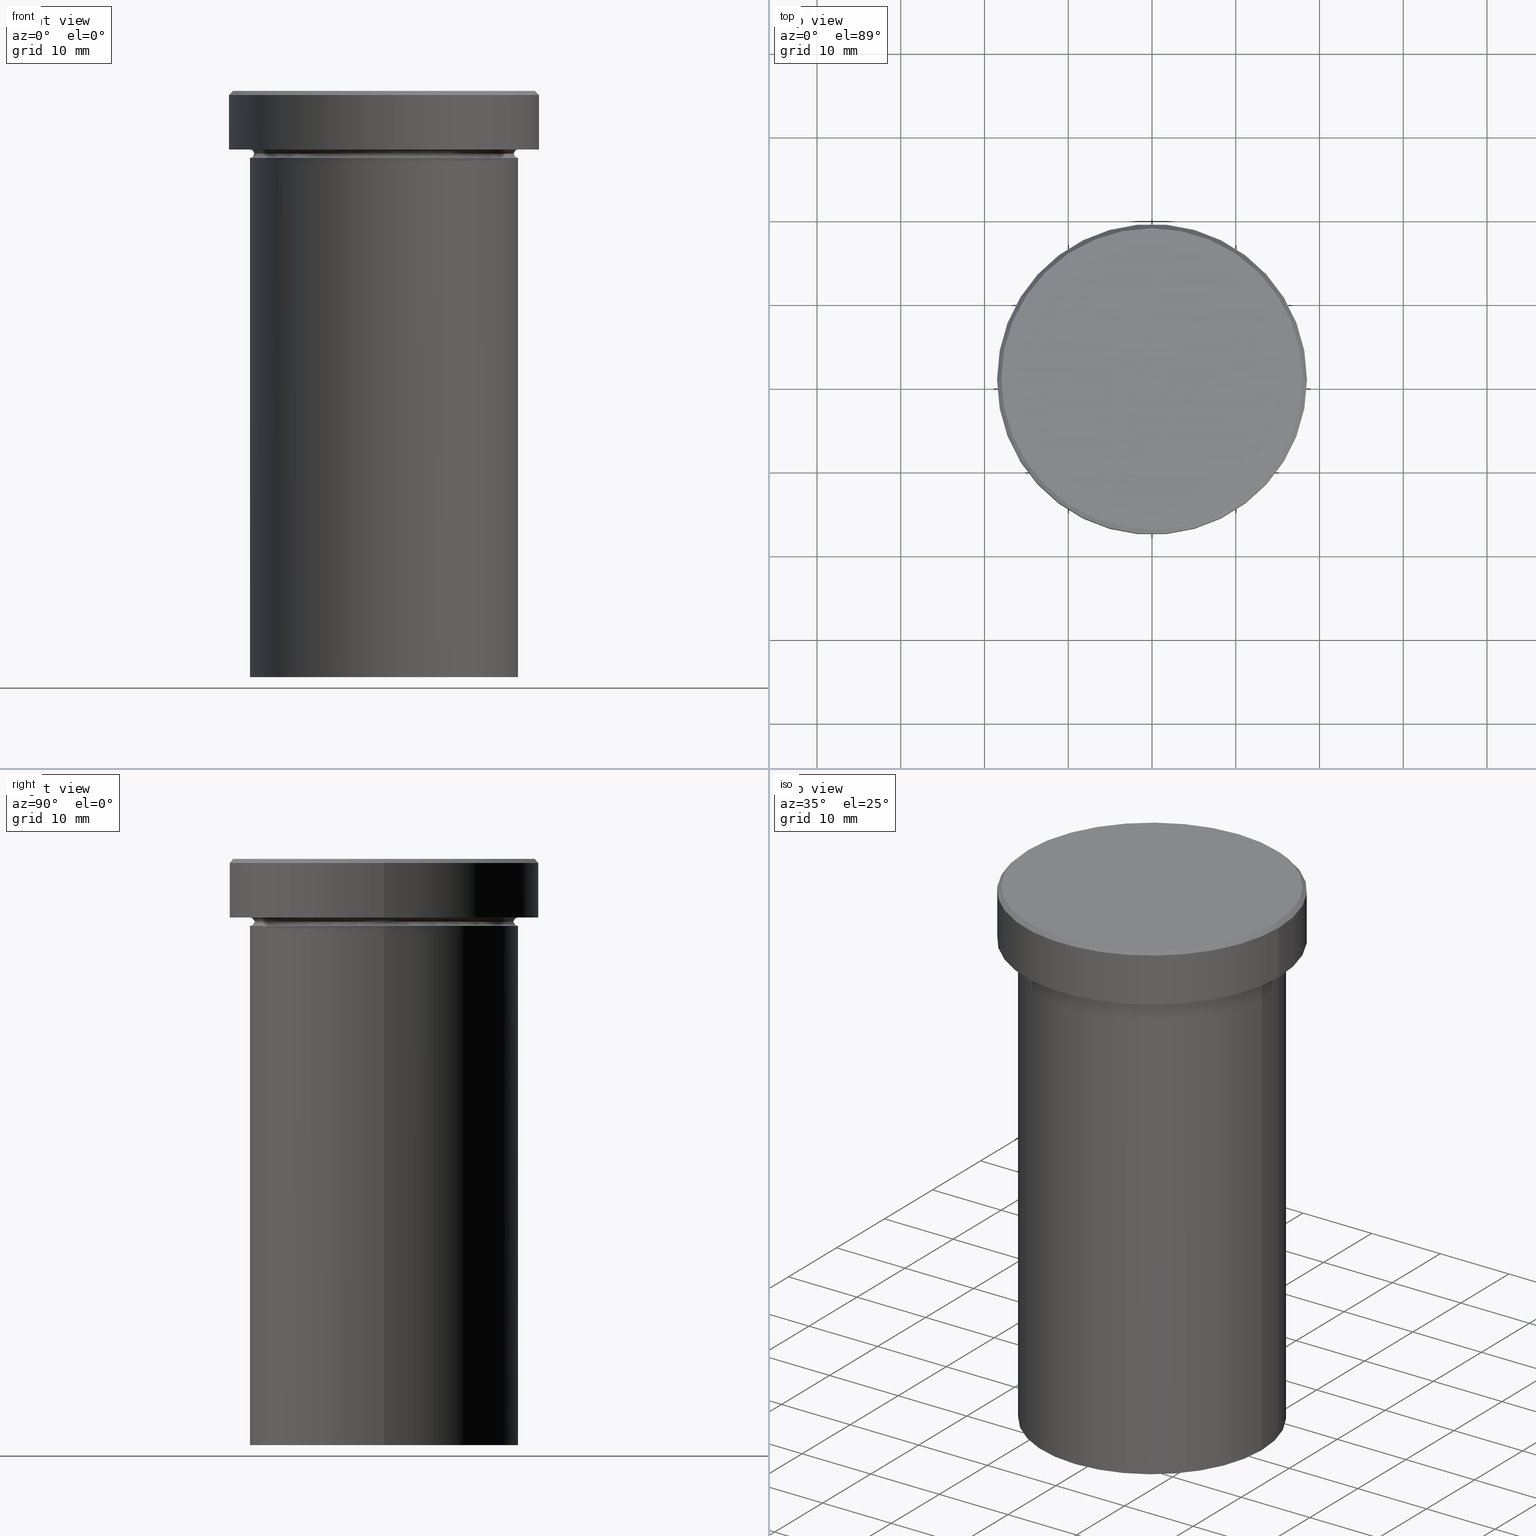
[diagram: canonical four-view strip — front | top / right | iso, engineering-drawing reading convention]
A machine part, canonical four-view strip (front | top / right | iso — engineering-drawing reading convention). The complete STEP part file that produces these views, byte-faithful:
ISO-10303-21;
HEADER;
FILE_DESCRIPTION (( 'STEP AP203' ),
    '1' );
FILE_NAME ('1b6e.STEP',
    '2024-01-02T18:53:18',
    ( '' ),
    ( '' ),
    'SwSTEP 2.0',
    'SolidWorks 2019',
    '' );
FILE_SCHEMA (( 'CONFIG_CONTROL_DESIGN' ));
ENDSEC;

DATA;
#1 = CARTESIAN_POINT ( 'NONE',  ( -16.00000000000000000, 1.959434878635765131E-15, 0.000000000000000000 ) ) ;
#2 = ORIENTED_EDGE ( 'NONE', *, *, #101, .T. ) ;
#3 = CALENDAR_DATE ( 2024, 2, 1 ) ;
#4 = DIRECTION ( 'NONE',  ( 1.000000000000000000, 0.000000000000000000, 0.000000000000000000 ) ) ;
#5 = ORIENTED_EDGE ( 'NONE', *, *, #390, .T. ) ;
#6 = PERSON_AND_ORGANIZATION ( #210, #77 ) ;
#7 = CC_DESIGN_APPROVAL ( #21, ( #374 ) ) ;
#8 = CYLINDRICAL_SURFACE ( 'NONE', #130, 16.00000000000000000 ) ;
#9 = CIRCLE ( 'NONE', #108, 18.00000000000001066 ) ;
#10 = SHAPE_DEFINITION_REPRESENTATION ( #187, #308 ) ;
#11 = CYLINDRICAL_SURFACE ( 'NONE', #353, 18.50000000000000000 ) ;
#12 = EDGE_CURVE ( 'NONE', #275, #209, #54, .T. ) ;
#13 = FACE_OUTER_BOUND ( 'NONE', #52, .T. ) ;
#14 = APPROVAL_STATUS ( 'not_yet_approved' ) ;
#15 = DIRECTION ( 'NONE',  ( 1.000000000000000000, 0.000000000000000000, 0.000000000000000000 ) ) ;
#16 = SECURITY_CLASSIFICATION ( '', '', #382 ) ;
#17 = CARTESIAN_POINT ( 'NONE',  ( 0.000000000000000000, 16.00000000000000000, -70.00000000000000000 ) ) ;
#18 = AXIS2_PLACEMENT_3D ( 'NONE', #359, #298, #265 ) ;
#19 = DIRECTION ( 'NONE',  ( -0.000000000000000000, -0.000000000000000000, 1.000000000000000000 ) ) ;
#20 = ORIENTED_EDGE ( 'NONE', *, *, #32, .F. ) ;
#21 = APPROVAL ( #14, 'NEUR�EN�' ) ;
#22 = DIRECTION ( 'NONE',  ( -1.000000000000000000, 0.000000000000000000, 0.000000000000000000 ) ) ;
#23 = CARTESIAN_POINT ( 'NONE',  ( 18.00000000000001066, 2.204364238465237006E-15, 0.000000000000000000 ) ) ;
#24 = TOROIDAL_SURFACE ( 'NONE', #245, 16.00000000000000000, 0.5000000000000000000 ) ;
#25 = EDGE_CURVE ( 'NONE', #26, #395, #222, .T. ) ;
#26 = VERTEX_POINT ( 'NONE', #121 ) ;
#27 = DIRECTION ( 'NONE',  ( -1.000000000000000000, 0.000000000000000000, 0.000000000000000000 ) ) ;
#28 = CARTESIAN_POINT ( 'NONE',  ( -16.00000000000000000, 1.959434878635765131E-15, -8.000000000000000000 ) ) ;
#29 = MECHANICAL_CONTEXT ( 'NONE', #399, 'mechanical' ) ;
#30 = DIRECTION ( 'NONE',  ( 1.000000000000000000, 0.000000000000000000, 0.000000000000000000 ) ) ;
#31 = FACE_BOUND ( 'NONE', #402, .T. ) ;
#32 = EDGE_CURVE ( 'NONE', #225, #282, #167, .T. ) ;
#33 = ORIENTED_EDGE ( 'NONE', *, *, #132, .F. ) ;
#34 = CALENDAR_DATE ( 2024, 2, 1 ) ;
#35 = CARTESIAN_POINT ( 'NONE',  ( 18.50000000000000000, 0.000000000000000000, -6.999999999999998224 ) ) ;
#36 = CIRCLE ( 'NONE', #161, 0.5000000000000004441 ) ;
#37 = EDGE_LOOP ( 'NONE', ( #95, #236, #217, #381 ) ) ;
#38 = APPROVAL_DATE_TIME ( #391, #292 ) ;
#39 = AXIS2_PLACEMENT_3D ( 'NONE', #366, #196, #30 ) ;
#40 = EDGE_CURVE ( 'NONE', #312, #282, #305, .T. ) ;
#41 = VERTEX_POINT ( 'NONE', #49 ) ;
#42 = APPROVAL_STATUS ( 'not_yet_approved' ) ;
#43 = CARTESIAN_POINT ( 'NONE',  ( 0.000000000000000000, 0.000000000000000000, -7.500000000000000000 ) ) ;
#44 = ORIENTED_EDGE ( 'NONE', *, *, #89, .T. ) ;
#45 = APPROVAL_PERSON_ORGANIZATION ( #96, #78, #346 ) ;
#46 = LINE ( 'NONE', #393, #200 ) ;
#47 = ADVANCED_FACE ( 'NONE', ( #13 ), #146, .T. ) ;
#48 = AXIS2_PLACEMENT_3D ( 'NONE', #70, #117, #211 ) ;
#49 = CARTESIAN_POINT ( 'NONE',  ( 16.00000000000000000, 0.000000000000000000, -8.000000000000000000 ) ) ;
#50 = CARTESIAN_POINT ( 'NONE',  ( 18.00000000000001066, 2.234980408443920004E-15, 0.000000000000000000 ) ) ;
#51 = AXIS2_PLACEMENT_3D ( 'NONE', #324, #72, #240 ) ;
#52 = EDGE_LOOP ( 'NONE', ( #375, #99, #335, #315 ) ) ;
#53 = DIRECTION ( 'NONE',  ( -1.224646799147353207E-16, 1.000000000000000000, 0.000000000000000000 ) ) ;
#54 = LINE ( 'NONE', #23, #334 ) ;
#55 = CIRCLE ( 'NONE', #143, 16.00000000000000000 ) ;
#56 = EDGE_CURVE ( 'NONE', #133, #209, #85, .T. ) ;
#57 =( NAMED_UNIT ( * ) PLANE_ANGLE_UNIT ( ) SI_UNIT ( $, .RADIAN. ) );
#58 = ORIENTED_EDGE ( 'NONE', *, *, #251, .T. ) ;
#59 =( NAMED_UNIT ( * ) SI_UNIT ( $, .STERADIAN. ) SOLID_ANGLE_UNIT ( ) );
#60 = EDGE_LOOP ( 'NONE', ( #81, #340 ) ) ;
#61 =( LENGTH_UNIT ( ) NAMED_UNIT ( * ) SI_UNIT ( .MILLI., .METRE. ) );
#62 = VECTOR ( 'NONE', #319, 1000.000000000000000 ) ;
#63 = EDGE_CURVE ( 'NONE', #225, #41, #385, .T. ) ;
#64 = EDGE_LOOP ( 'NONE', ( #231, #255, #185, #317 ) ) ;
#65 = DIRECTION ( 'NONE',  ( 0.000000000000000000, 0.000000000000000000, 1.000000000000000000 ) ) ;
#66 = DIRECTION ( 'NONE',  ( -0.000000000000000000, -0.000000000000000000, 1.000000000000000000 ) ) ;
#67 = DIRECTION ( 'NONE',  ( -1.000000000000000000, 0.000000000000000000, 0.000000000000000000 ) ) ;
#68 = DIRECTION ( 'NONE',  ( 1.000000000000000000, 0.000000000000000000, 0.000000000000000000 ) ) ;
#69 = VECTOR ( 'NONE', #378, 1000.000000000000000 ) ;
#70 = CARTESIAN_POINT ( 'NONE',  ( 0.000000000000000000, 0.000000000000000000, -8.000000000000000000 ) ) ;
#71 = CALENDAR_DATE ( 2024, 2, 1 ) ;
#72 = DIRECTION ( 'NONE',  ( 0.000000000000000000, 0.000000000000000000, -1.000000000000000000 ) ) ;
#73 = CALENDAR_DATE ( 2024, 2, 1 ) ;
#74 = FACE_OUTER_BOUND ( 'NONE', #205, .T. ) ;
#75 = ORIENTED_EDGE ( 'NONE', *, *, #150, .F. ) ;
#76 = APPROVAL_ROLE ( '' ) ;
#77 = ORGANIZATION ( 'NEUR�EN�', 'NEUR�EN�', '' ) ;
#78 = APPROVAL ( #232, 'NEUR�EN�' ) ;
#79 = DIRECTION ( 'NONE',  ( 0.000000000000000000, -0.000000000000000000, 1.000000000000000000 ) ) ;
#80 = CIRCLE ( 'NONE', #409, 18.00000000000001066 ) ;
#81 = ORIENTED_EDGE ( 'NONE', *, *, #301, .F. ) ;
#82 = FACE_OUTER_BOUND ( 'NONE', #242, .T. ) ;
#83 = ADVANCED_FACE ( 'NONE', ( #278 ), #155, .F. ) ;
#84 = AXIS2_PLACEMENT_3D ( 'NONE', #343, #65, #192 ) ;
#85 = CIRCLE ( 'NONE', #131, 18.50000000000000000 ) ;
#86 = ORIENTED_EDGE ( 'NONE', *, *, #164, .T. ) ;
#87 = CARTESIAN_POINT ( 'NONE',  ( -18.50000000000000000, 2.265596578422603396E-15, 0.000000000000000000 ) ) ;
#88 = ORIENTED_EDGE ( 'NONE', *, *, #12, .T. ) ;
#89 = EDGE_CURVE ( 'NONE', #369, #275, #80, .T. ) ;
#90 = ORIENTED_EDGE ( 'NONE', *, *, #320, .T. ) ;
#91 = CC_DESIGN_APPROVAL ( #78, ( #179 ) ) ;
#92 = ORIENTED_EDGE ( 'NONE', *, *, #150, .T. ) ;
#93 = CARTESIAN_POINT ( 'NONE',  ( 0.000000000000000000, 18.50000000000000000, -6.999999999999999112 ) ) ;
#94 = ADVANCED_FACE ( 'NONE', ( #198 ), #398, .T. ) ;
#95 = ORIENTED_EDGE ( 'NONE', *, *, #373, .F. ) ;
#96 = PERSON_AND_ORGANIZATION ( #210, #77 ) ;
#97 =( GEOMETRIC_REPRESENTATION_CONTEXT ( 3 ) GLOBAL_UNCERTAINTY_ASSIGNED_CONTEXT ( ( #103 ) ) GLOBAL_UNIT_ASSIGNED_CONTEXT ( ( #61, #57, #59 ) ) REPRESENTATION_CONTEXT ( 'NONE', 'WORKASPACE' ) );
#98 = APPLICATION_PROTOCOL_DEFINITION ( 'international standard', 'config_control_design', 1994, #399 ) ;
#99 = ORIENTED_EDGE ( 'NONE', *, *, #113, .T. ) ;
#100 = CARTESIAN_POINT ( 'NONE',  ( -16.00000000000000000, 1.959434878635765131E-15, -70.00000000000000000 ) ) ;
#101 = EDGE_CURVE ( 'NONE', #275, #369, #9, .T. ) ;
#102 = DIRECTION ( 'NONE',  ( -0.000000000000000000, -0.000000000000000000, 1.000000000000000000 ) ) ;
#103 = UNCERTAINTY_MEASURE_WITH_UNIT (LENGTH_MEASURE( 1.000000000000000082E-05 ), #61, 'distance_accuracy_value', 'NONE');
#104 = PERSON_AND_ORGANIZATION ( #210, #77 ) ;
#105 = CARTESIAN_POINT ( 'NONE',  ( -16.00000000000000000, 1.959434878635765131E-15, -7.500000000000000000 ) ) ;
#106 = AXIS2_PLACEMENT_3D ( 'NONE', #376, #191, #195 ) ;
#107 = ORIENTED_EDGE ( 'NONE', *, *, #25, .F. ) ;
#108 = AXIS2_PLACEMENT_3D ( 'NONE', #250, #287, #257 ) ;
#109 = DATE_AND_TIME ( #34, #156 ) ;
#110 = DIRECTION ( 'NONE',  ( -0.000000000000000000, -0.000000000000000000, 1.000000000000000000 ) ) ;
#111 = COORDINATED_UNIVERSAL_TIME_OFFSET ( 1, 0, .AHEAD. ) ;
#112 = DIRECTION ( 'NONE',  ( -0.000000000000000000, -0.000000000000000000, 1.000000000000000000 ) ) ;
#113 = EDGE_CURVE ( 'NONE', #252, #133, #228, .T. ) ;
#114 = EDGE_LOOP ( 'NONE', ( #182, #88, #354, #289 ) ) ;
#115 = DIRECTION ( 'NONE',  ( 1.000000000000000000, 0.000000000000000000, 0.000000000000000000 ) ) ;
#116 = AXIS2_PLACEMENT_3D ( 'NONE', #188, #306, #159 ) ;
#117 = DIRECTION ( 'NONE',  ( -0.000000000000000000, -0.000000000000000000, 1.000000000000000000 ) ) ;
#118 = AXIS2_PLACEMENT_3D ( 'NONE', #352, #246, #4 ) ;
#119 = DIRECTION ( 'NONE',  ( -1.000000000000000000, -1.224646799147349509E-16, 0.000000000000000000 ) ) ;
#120 = EDGE_LOOP ( 'NONE', ( #20, #267, #90, #165 ) ) ;
#121 = CARTESIAN_POINT ( 'NONE',  ( 16.00000000000000000, 0.000000000000000000, -70.00000000000000000 ) ) ;
#122 = ORIENTED_EDGE ( 'NONE', *, *, #89, .F. ) ;
#123 = CARTESIAN_POINT ( 'NONE',  ( 0.000000000000000000, 0.000000000000000000, -7.500000000000000000 ) ) ;
#124 = VERTEX_POINT ( 'NONE', #35 ) ;
#125 = CIRCLE ( 'NONE', #208, 18.50000000000000000 ) ;
#126 = PLANE ( 'NONE',  #351 ) ;
#127 = CC_DESIGN_PERSON_AND_ORGANIZATION_ASSIGNMENT ( #104, #268, ( #16 ) ) ;
#128 = DIRECTION ( 'NONE',  ( 0.000000000000000000, 0.000000000000000000, -1.000000000000000000 ) ) ;
#129 = DIRECTION ( 'NONE',  ( -1.000000000000000000, 0.000000000000000000, -0.000000000000000000 ) ) ;
#130 = AXIS2_PLACEMENT_3D ( 'NONE', #202, #145, #270 ) ;
#131 = AXIS2_PLACEMENT_3D ( 'NONE', #214, #394, #153 ) ;
#132 = EDGE_CURVE ( 'NONE', #395, #26, #249, .T. ) ;
#133 = VERTEX_POINT ( 'NONE', #293 ) ;
#134 = LINE ( 'NONE', #285, #69 ) ;
#135 = CARTESIAN_POINT ( 'NONE',  ( -15.50000000000000000, 1.928818708657081344E-15, -7.500000000000000000 ) ) ;
#136 = ADVANCED_FACE ( 'NONE', ( #326 ), #24, .F. ) ;
#137 = DIRECTION ( 'NONE',  ( 0.000000000000000000, 0.000000000000000000, -1.000000000000000000 ) ) ;
#138 = DATE_AND_TIME ( #73, #276 ) ;
#139 = FACE_OUTER_BOUND ( 'NONE', #37, .T. ) ;
#140 = ORIENTED_EDGE ( 'NONE', *, *, #347, .T. ) ;
#141 = COORDINATED_UNIVERSAL_TIME_OFFSET ( 1, 0, .AHEAD. ) ;
#142 = DIRECTION ( 'NONE',  ( -0.000000000000000000, -0.000000000000000000, 1.000000000000000000 ) ) ;
#143 = AXIS2_PLACEMENT_3D ( 'NONE', #300, #271, #15 ) ;
#144 = PERSON_AND_ORGANIZATION ( #210, #77 ) ;
#145 = DIRECTION ( 'NONE',  ( -0.000000000000000000, -0.000000000000000000, 1.000000000000000000 ) ) ;
#146 = CYLINDRICAL_SURFACE ( 'NONE', #162, 18.50000000000000000 ) ;
#147 = DATE_TIME_ROLE ( 'classification_date' ) ;
#148 = CARTESIAN_POINT ( 'NONE',  ( 0.000000000000000000, 0.000000000000000000, -6.999999999999998224 ) ) ;
#149 = CONICAL_SURFACE ( 'NONE', #281, 18.00000000000001066, 0.7853981633974309595 ) ;
#150 = EDGE_CURVE ( 'NONE', #41, #400, #229, .T. ) ;
#151 = DIRECTION ( 'NONE',  ( -0.000000000000000000, -0.000000000000000000, 1.000000000000000000 ) ) ;
#152 = ORIENTED_EDGE ( 'NONE', *, *, #132, .T. ) ;
#153 = DIRECTION ( 'NONE',  ( 1.000000000000000000, 0.000000000000000000, 0.000000000000000000 ) ) ;
#154 = DIRECTION ( 'NONE',  ( 0.7071067811865352493, 8.659560562354782482E-17, -0.7071067811865597852 ) ) ;
#155 = TOROIDAL_SURFACE ( 'NONE', #372, 16.00000000000000000, 0.5000000000000000000 ) ;
#156 = LOCAL_TIME ( 19, 53, 18.00000000000000000, #318 ) ;
#157 = CIRCLE ( 'NONE', #118, 18.50000000000000000 ) ;
#158 = EDGE_CURVE ( 'NONE', #369, #133, #46, .T. ) ;
#159 = DIRECTION ( 'NONE',  ( 1.000000000000000000, 0.000000000000000000, 0.000000000000000000 ) ) ;
#160 = ADVANCED_FACE ( 'NONE', ( #74 ), #328, .T. ) ;
#161 = AXIS2_PLACEMENT_3D ( 'NONE', #262, #339, #405 ) ;
#162 = AXIS2_PLACEMENT_3D ( 'NONE', #247, #19, #361 ) ;
#163 = APPLICATION_PROTOCOL_DEFINITION ( 'international standard', 'config_control_design', 1994, #269 ) ;
#164 = EDGE_CURVE ( 'NONE', #209, #133, #157, .T. ) ;
#165 = ORIENTED_EDGE ( 'NONE', *, *, #347, .F. ) ;
#166 = DIRECTION ( 'NONE',  ( 0.000000000000000000, 0.000000000000000000, -1.000000000000000000 ) ) ;
#167 = CIRCLE ( 'NONE', #266, 0.5000000000000004441 ) ;
#168 = DIRECTION ( 'NONE',  ( 1.000000000000000000, 0.000000000000000000, 0.000000000000000000 ) ) ;
#169 = EDGE_LOOP ( 'NONE', ( #223, #322, #75, #174 ) ) ;
#170 = DIRECTION ( 'NONE',  ( -0.000000000000000000, -0.000000000000000000, 1.000000000000000000 ) ) ;
#171 = ORIENTED_EDGE ( 'NONE', *, *, #158, .T. ) ;
#172 = EDGE_CURVE ( 'NONE', #395, #400, #204, .T. ) ;
#173 = APPROVAL_PERSON_ORGANIZATION ( #175, #292, #299 ) ;
#174 = ORIENTED_EDGE ( 'NONE', *, *, #241, .F. ) ;
#175 = PERSON_AND_ORGANIZATION ( #210, #77 ) ;
#176 = CARTESIAN_POINT ( 'NONE',  ( 0.000000000000000000, 0.000000000000000000, 0.000000000000000000 ) ) ;
#177 = APPROVAL_DATE_TIME ( #109, #78 ) ;
#178 = CARTESIAN_POINT ( 'NONE',  ( 16.00000000000000000, 1.959434878635765131E-15, -6.999999999999999112 ) ) ;
#179 = PRODUCT_DEFINITION ( 'NEZN�M�', '', #374, #226 ) ;
#180 = CARTESIAN_POINT ( 'NONE',  ( 0.000000000000000000, 0.000000000000000000, -70.00000000000000000 ) ) ;
#181 = AXIS2_PLACEMENT_3D ( 'NONE', #123, #336, #220 ) ;
#182 = ORIENTED_EDGE ( 'NONE', *, *, #101, .F. ) ;
#183 = AXIS2_PLACEMENT_3D ( 'NONE', #105, #332, #380 ) ;
#184 = CARTESIAN_POINT ( 'NONE',  ( 16.00000000000000000, 1.959434878635765131E-15, -7.500000000000000000 ) ) ;
#185 = ORIENTED_EDGE ( 'NONE', *, *, #40, .F. ) ;
#186 = ADVANCED_FACE ( 'NONE', ( #139 ), #337, .F. ) ;
#187 = PRODUCT_DEFINITION_SHAPE ( 'NONE', 'NONE',  #179 ) ;
#188 = CARTESIAN_POINT ( 'NONE',  ( 0.000000000000000000, 0.000000000000000000, -6.999999999999998224 ) ) ;
#189 = EDGE_LOOP ( 'NONE', ( #107, #33 ) ) ;
#190 = ORIENTED_EDGE ( 'NONE', *, *, #241, .T. ) ;
#191 = DIRECTION ( 'NONE',  ( 0.000000000000000000, 0.000000000000000000, -1.000000000000000000 ) ) ;
#192 = DIRECTION ( 'NONE',  ( 1.000000000000000000, 0.000000000000000000, 0.000000000000000000 ) ) ;
#193 = AXIS2_PLACEMENT_3D ( 'NONE', #272, #389, #218 ) ;
#194 = EDGE_LOOP ( 'NONE', ( #264, #233, #362, #92 ) ) ;
#195 = DIRECTION ( 'NONE',  ( -1.000000000000000000, 0.000000000000000000, 0.000000000000000000 ) ) ;
#196 = DIRECTION ( 'NONE',  ( -0.000000000000000000, -0.000000000000000000, 1.000000000000000000 ) ) ;
#197 = PERSON_AND_ORGANIZATION ( #210, #77 ) ;
#198 = FACE_OUTER_BOUND ( 'NONE', #169, .T. ) ;
#199 = LOCAL_TIME ( 19, 53, 18.00000000000000000, #141 ) ;
#200 = VECTOR ( 'NONE', #213, 1000.000000000000000 ) ;
#201 = DATE_AND_TIME ( #71, #344 ) ;
#202 = CARTESIAN_POINT ( 'NONE',  ( 0.000000000000000000, 0.000000000000000000, 0.000000000000000000 ) ) ;
#203 = DATE_TIME_ROLE ( 'creation_date' ) ;
#204 = LINE ( 'NONE', #1, #311 ) ;
#205 = EDGE_LOOP ( 'NONE', ( #44, #2 ) ) ;
#206 = DIRECTION ( 'NONE',  ( 1.000000000000000000, 0.000000000000000000, 0.000000000000000000 ) ) ;
#207 = AXIS2_PLACEMENT_3D ( 'NONE', #345, #66, #168 ) ;
#208 = AXIS2_PLACEMENT_3D ( 'NONE', #148, #388, #115 ) ;
#209 = VERTEX_POINT ( 'NONE', #384 ) ;
#210 = PERSON ( 'NEUR�EN�', 'NEUR�EN�', 'NEUR�EN�', ('NEUR�EN�'), ('NEUR�EN�'), ('NEUR�EN�') ) ;
#211 = DIRECTION ( 'NONE',  ( 1.000000000000000000, 0.000000000000000000, 0.000000000000000000 ) ) ;
#212 = ADVANCED_FACE ( 'NONE', ( #82 ), #11, .T. ) ;
#213 = DIRECTION ( 'NONE',  ( -0.7071067811865352493, 0.000000000000000000, -0.7071067811865597852 ) ) ;
#214 = CARTESIAN_POINT ( 'NONE',  ( 0.000000000000000000, 0.000000000000000000, -0.5000000000000073275 ) ) ;
#215 = CARTESIAN_POINT ( 'NONE',  ( 0.000000000000000000, 0.000000000000000000, -6.999999999999999112 ) ) ;
#216 = EDGE_CURVE ( 'NONE', #377, #400, #254, .T. ) ;
#217 = ORIENTED_EDGE ( 'NONE', *, *, #248, .T. ) ;
#218 = DIRECTION ( 'NONE',  ( 0.000000000000000000, 0.000000000000000000, -1.000000000000000000 ) ) ;
#219 = CIRCLE ( 'NONE', #116, 18.50000000000000000 ) ;
#220 = DIRECTION ( 'NONE',  ( 1.000000000000000000, 0.000000000000000000, 0.000000000000000000 ) ) ;
#221 = CC_DESIGN_PERSON_AND_ORGANIZATION_ASSIGNMENT ( #197, #237, ( #179 ) ) ;
#222 = CIRCLE ( 'NONE', #291, 16.00000000000000000 ) ;
#223 = ORIENTED_EDGE ( 'NONE', *, *, #25, .T. ) ;
#224 = PERSON_AND_ORGANIZATION_ROLE ( 'design_owner' ) ;
#225 = VERTEX_POINT ( 'NONE', #238 ) ;
#226 = DESIGN_CONTEXT ( 'detailed design', #269, 'design' ) ;
#227 = AXIS2_PLACEMENT_3D ( 'NONE', #288, #313, #27 ) ;
#228 = LINE ( 'NONE', #87, #62 ) ;
#229 = CIRCLE ( 'NONE', #48, 16.00000000000000000 ) ;
#230 = ADVANCED_FACE ( 'NONE', ( #355 ), #401, .F. ) ;
#231 = ORIENTED_EDGE ( 'NONE', *, *, #373, .T. ) ;
#232 = APPROVAL_STATUS ( 'not_yet_approved' ) ;
#233 = ORIENTED_EDGE ( 'NONE', *, *, #310, .F. ) ;
#234 = LOCAL_TIME ( 19, 53, 18.00000000000000000, #323 ) ;
#235 = ADVANCED_FACE ( 'NONE', ( #356 ), #8, .T. ) ;
#236 = ORIENTED_EDGE ( 'NONE', *, *, #216, .T. ) ;
#237 = PERSON_AND_ORGANIZATION_ROLE ( 'creator' ) ;
#238 = CARTESIAN_POINT ( 'NONE',  ( 15.50000000000000000, 0.000000000000000000, -7.500000000000000000 ) ) ;
#239 = CALENDAR_DATE ( 2024, 2, 1 ) ;
#240 = DIRECTION ( 'NONE',  ( -1.000000000000000000, 0.000000000000000000, 0.000000000000000000 ) ) ;
#241 = EDGE_CURVE ( 'NONE', #26, #41, #243, .T. ) ;
#242 = EDGE_LOOP ( 'NONE', ( #349, #58, #5, #86 ) ) ;
#243 = LINE ( 'NONE', #387, #329 ) ;
#244 = CC_DESIGN_SECURITY_CLASSIFICATION ( #16, ( #374 ) ) ;
#245 = AXIS2_PLACEMENT_3D ( 'NONE', #43, #170, #206 ) ;
#246 = DIRECTION ( 'NONE',  ( 0.000000000000000000, 0.000000000000000000, -1.000000000000000000 ) ) ;
#247 = CARTESIAN_POINT ( 'NONE',  ( 0.000000000000000000, 0.000000000000000000, 0.000000000000000000 ) ) ;
#248 = EDGE_CURVE ( 'NONE', #400, #41, #55, .T. ) ;
#249 = CIRCLE ( 'NONE', #207, 16.00000000000000000 ) ;
#250 = CARTESIAN_POINT ( 'NONE',  ( 0.000000000000000000, 0.000000000000000000, 0.000000000000000000 ) ) ;
#251 = EDGE_CURVE ( 'NONE', #252, #124, #125, .T. ) ;
#252 = VERTEX_POINT ( 'NONE', #357 ) ;
#253 = CIRCLE ( 'NONE', #227, 16.00000000000000000 ) ;
#254 = CIRCLE ( 'NONE', #183, 0.5000000000000004441 ) ;
#255 = ORIENTED_EDGE ( 'NONE', *, *, #32, .T. ) ;
#256 = FACE_OUTER_BOUND ( 'NONE', #60, .T. ) ;
#257 = DIRECTION ( 'NONE',  ( 1.000000000000000000, 0.000000000000000000, 0.000000000000000000 ) ) ;
#258 = CC_DESIGN_PERSON_AND_ORGANIZATION_ASSIGNMENT ( #368, #224, ( #309 ) ) ;
#259 = DIRECTION ( 'NONE',  ( 1.000000000000000000, 0.000000000000000000, 0.000000000000000000 ) ) ;
#260 = CC_DESIGN_APPROVAL ( #292, ( #16 ) ) ;
#261 = EDGE_LOOP ( 'NONE', ( #367, #122, #171, #338 ) ) ;
#262 = CARTESIAN_POINT ( 'NONE',  ( -16.00000000000000000, 0.000000000000000000, -7.500000000000000000 ) ) ;
#263 = DIRECTION ( 'NONE',  ( 1.000000000000000000, 0.000000000000000000, 0.000000000000000000 ) ) ;
#264 = ORIENTED_EDGE ( 'NONE', *, *, #216, .F. ) ;
#265 = DIRECTION ( 'NONE',  ( 1.000000000000000000, 0.000000000000000000, 0.000000000000000000 ) ) ;
#266 = AXIS2_PLACEMENT_3D ( 'NONE', #184, #53, #119 ) ;
#267 = ORIENTED_EDGE ( 'NONE', *, *, #310, .T. ) ;
#268 = PERSON_AND_ORGANIZATION_ROLE ( 'classification_officer' ) ;
#269 = APPLICATION_CONTEXT ( 'configuration controlled 3d designs of mechanical parts and assemblies' ) ;
#270 = DIRECTION ( 'NONE',  ( 1.000000000000000000, 0.000000000000000000, 0.000000000000000000 ) ) ;
#271 = DIRECTION ( 'NONE',  ( -0.000000000000000000, -0.000000000000000000, 1.000000000000000000 ) ) ;
#272 = CARTESIAN_POINT ( 'NONE',  ( 16.00000000000000000, 0.000000000000000000, -7.500000000000000000 ) ) ;
#273 = CIRCLE ( 'NONE', #181, 15.50000000000000000 ) ;
#274 = DIRECTION ( 'NONE',  ( 1.000000000000000000, 0.000000000000000000, 0.000000000000000000 ) ) ;
#275 = VERTEX_POINT ( 'NONE', #50 ) ;
#276 = LOCAL_TIME ( 19, 53, 18.00000000000000000, #111 ) ;
#277 = AXIS2_PLACEMENT_3D ( 'NONE', #296, #79, #333 ) ;
#278 = FACE_OUTER_BOUND ( 'NONE', #120, .T. ) ;
#279 = PRODUCT_RELATED_PRODUCT_CATEGORY ( 'detail', '', ( #309 ) ) ;
#280 = CARTESIAN_POINT ( 'NONE',  ( 0.000000000000000000, 0.000000000000000000, -7.500000000000000000 ) ) ;
#281 = AXIS2_PLACEMENT_3D ( 'NONE', #408, #137, #67 ) ;
#282 = VERTEX_POINT ( 'NONE', #178 ) ;
#283 = FACE_OUTER_BOUND ( 'NONE', #261, .T. ) ;
#284 = ORIENTED_EDGE ( 'NONE', *, *, #172, .F. ) ;
#285 = CARTESIAN_POINT ( 'NONE',  ( 18.50000000000000000, 0.000000000000000000, 0.000000000000000000 ) ) ;
#286 = ADVANCED_FACE ( 'NONE', ( #304 ), #126, .T. ) ;
#287 = DIRECTION ( 'NONE',  ( -0.000000000000000000, -0.000000000000000000, 1.000000000000000000 ) ) ;
#288 = CARTESIAN_POINT ( 'NONE',  ( 0.000000000000000000, 0.000000000000000000, -6.999999999999999112 ) ) ;
#289 = ORIENTED_EDGE ( 'NONE', *, *, #158, .F. ) ;
#290 = FACE_OUTER_BOUND ( 'NONE', #114, .T. ) ;
#291 = AXIS2_PLACEMENT_3D ( 'NONE', #180, #151, #274 ) ;
#292 = APPROVAL ( #42, 'NEUR�EN�' ) ;
#293 = CARTESIAN_POINT ( 'NONE',  ( -18.50000000000000000, 2.265596578422603396E-15, -0.5000000000000073275 ) ) ;
#294 = ORIENTED_EDGE ( 'NONE', *, *, #248, .F. ) ;
#295 = PERSON_AND_ORGANIZATION ( #210, #77 ) ;
#296 = CARTESIAN_POINT ( 'NONE',  ( 0.000000000000000000, 0.000000000000000000, 0.000000000000000000 ) ) ;
#297 = COORDINATED_UNIVERSAL_TIME_OFFSET ( 1, 0, .AHEAD. ) ;
#298 = DIRECTION ( 'NONE',  ( -0.000000000000000000, -0.000000000000000000, 1.000000000000000000 ) ) ;
#299 = APPROVAL_ROLE ( '' ) ;
#300 = CARTESIAN_POINT ( 'NONE',  ( 0.000000000000000000, 0.000000000000000000, -8.000000000000000000 ) ) ;
#301 = EDGE_CURVE ( 'NONE', #124, #252, #219, .T. ) ;
#302 = ORIENTED_EDGE ( 'NONE', *, *, #40, .T. ) ;
#303 = PERSON_AND_ORGANIZATION_ROLE ( 'creator' ) ;
#304 = FACE_OUTER_BOUND ( 'NONE', #189, .T. ) ;
#305 = CIRCLE ( 'NONE', #327, 16.00000000000000000 ) ;
#306 = DIRECTION ( 'NONE',  ( -0.000000000000000000, -0.000000000000000000, 1.000000000000000000 ) ) ;
#307 = DIRECTION ( 'NONE',  ( -0.000000000000000000, -0.000000000000000000, 1.000000000000000000 ) ) ;
#308 = ADVANCED_BREP_SHAPE_REPRESENTATION ( '1b6e', ( #358, #84 ), #97 ) ;
#309 = PRODUCT ( '1b6e', '1b6e', '', ( #29 ) ) ;
#310 = EDGE_CURVE ( 'NONE', #225, #377, #273, .T. ) ;
#311 = VECTOR ( 'NONE', #142, 1000.000000000000000 ) ;
#312 = VERTEX_POINT ( 'NONE', #403 ) ;
#313 = DIRECTION ( 'NONE',  ( -0.000000000000000000, -0.000000000000000000, 1.000000000000000000 ) ) ;
#314 = ADVANCED_FACE ( 'NONE', ( #31, #256 ), #370, .T. ) ;
#315 = ORIENTED_EDGE ( 'NONE', *, *, #390, .F. ) ;
#316 = CARTESIAN_POINT ( 'NONE',  ( 0.000000000000000000, 0.000000000000000000, 0.000000000000000000 ) ) ;
#317 = ORIENTED_EDGE ( 'NONE', *, *, #320, .F. ) ;
#318 = COORDINATED_UNIVERSAL_TIME_OFFSET ( 1, 0, .AHEAD. ) ;
#319 = DIRECTION ( 'NONE',  ( -0.000000000000000000, -0.000000000000000000, 1.000000000000000000 ) ) ;
#320 = EDGE_CURVE ( 'NONE', #377, #312, #36, .T. ) ;
#321 = AXIS2_PLACEMENT_3D ( 'NONE', #93, #166, #129 ) ;
#322 = ORIENTED_EDGE ( 'NONE', *, *, #172, .T. ) ;
#323 = COORDINATED_UNIVERSAL_TIME_OFFSET ( 1, 0, .AHEAD. ) ;
#324 = CARTESIAN_POINT ( 'NONE',  ( 0.000000000000000000, 0.000000000000000000, -7.500000000000000000 ) ) ;
#325 = DATE_AND_TIME ( #3, #199 ) ;
#326 = FACE_OUTER_BOUND ( 'NONE', #194, .T. ) ;
#327 = AXIS2_PLACEMENT_3D ( 'NONE', #215, #307, #22 ) ;
#328 = PLANE ( 'NONE',  #277 ) ;
#329 = VECTOR ( 'NONE', #112, 1000.000000000000000 ) ;
#330 = CLOSED_SHELL ( 'NONE', ( #364, #230, #186, #94, #47, #286, #160, #212, #314, #235, #136, #83, #386 ) ) ;
#331 = PERSON_AND_ORGANIZATION_ROLE ( 'design_supplier' ) ;
#332 = DIRECTION ( 'NONE',  ( 1.224646799147353207E-16, 1.000000000000000000, 0.000000000000000000 ) ) ;
#333 = DIRECTION ( 'NONE',  ( 1.000000000000000000, 0.000000000000000000, 0.000000000000000000 ) ) ;
#334 = VECTOR ( 'NONE', #154, 1000.000000000000000 ) ;
#335 = ORIENTED_EDGE ( 'NONE', *, *, #56, .T. ) ;
#336 = DIRECTION ( 'NONE',  ( -0.000000000000000000, -0.000000000000000000, 1.000000000000000000 ) ) ;
#337 = TOROIDAL_SURFACE ( 'NONE', #18, 16.00000000000000000, 0.5000000000000000000 ) ;
#338 = ORIENTED_EDGE ( 'NONE', *, *, #164, .F. ) ;
#339 = DIRECTION ( 'NONE',  ( -0.000000000000000000, -1.000000000000000000, -0.000000000000000000 ) ) ;
#340 = ORIENTED_EDGE ( 'NONE', *, *, #251, .F. ) ;
#341 = DIRECTION ( 'NONE',  ( -0.000000000000000000, -0.000000000000000000, 1.000000000000000000 ) ) ;
#342 = CC_DESIGN_DATE_AND_TIME_ASSIGNMENT ( #201, #203, ( #179 ) ) ;
#343 = CARTESIAN_POINT ( 'NONE',  ( 0.000000000000000000, 0.000000000000000000, 0.000000000000000000 ) ) ;
#344 = LOCAL_TIME ( 19, 53, 18.00000000000000000, #297 ) ;
#345 = CARTESIAN_POINT ( 'NONE',  ( 0.000000000000000000, 0.000000000000000000, -70.00000000000000000 ) ) ;
#346 = APPROVAL_ROLE ( '' ) ;
#347 = EDGE_CURVE ( 'NONE', #282, #312, #253, .T. ) ;
#348 = DIRECTION ( 'NONE',  ( -1.000000000000000000, 0.000000000000000000, 0.000000000000000000 ) ) ;
#349 = ORIENTED_EDGE ( 'NONE', *, *, #113, .F. ) ;
#350 = APPROVAL_DATE_TIME ( #325, #21 ) ;
#351 = AXIS2_PLACEMENT_3D ( 'NONE', #17, #128, #365 ) ;
#352 = CARTESIAN_POINT ( 'NONE',  ( 0.000000000000000000, 0.000000000000000000, -0.5000000000000073275 ) ) ;
#353 = AXIS2_PLACEMENT_3D ( 'NONE', #176, #110, #263 ) ;
#354 = ORIENTED_EDGE ( 'NONE', *, *, #56, .F. ) ;
#355 = FACE_OUTER_BOUND ( 'NONE', #64, .T. ) ;
#356 = FACE_OUTER_BOUND ( 'NONE', #407, .T. ) ;
#357 = CARTESIAN_POINT ( 'NONE',  ( -18.50000000000000000, 2.265596578422603396E-15, -6.999999999999998224 ) ) ;
#358 = MANIFOLD_SOLID_BREP ( 'Zkosen�1', #330 ) ;
#359 = CARTESIAN_POINT ( 'NONE',  ( 0.000000000000000000, 0.000000000000000000, -7.500000000000000000 ) ) ;
#360 = CC_DESIGN_DATE_AND_TIME_ASSIGNMENT ( #138, #147, ( #16 ) ) ;
#361 = DIRECTION ( 'NONE',  ( 1.000000000000000000, 0.000000000000000000, 0.000000000000000000 ) ) ;
#362 = ORIENTED_EDGE ( 'NONE', *, *, #63, .T. ) ;
#363 = AXIS2_PLACEMENT_3D ( 'NONE', #280, #341, #259 ) ;
#364 = ADVANCED_FACE ( 'NONE', ( #290 ), #149, .T. ) ;
#365 = DIRECTION ( 'NONE',  ( -1.000000000000000000, 0.000000000000000000, -0.000000000000000000 ) ) ;
#366 = CARTESIAN_POINT ( 'NONE',  ( 0.000000000000000000, 0.000000000000000000, 0.000000000000000000 ) ) ;
#367 = ORIENTED_EDGE ( 'NONE', *, *, #12, .F. ) ;
#368 = PERSON_AND_ORGANIZATION ( #210, #77 ) ;
#369 = VERTEX_POINT ( 'NONE', #404 ) ;
#370 = PLANE ( 'NONE',  #321 ) ;
#371 = CARTESIAN_POINT ( 'NONE',  ( 0.000000000000000000, 0.000000000000000000, -7.500000000000000000 ) ) ;
#372 = AXIS2_PLACEMENT_3D ( 'NONE', #371, #379, #348 ) ;
#373 = EDGE_CURVE ( 'NONE', #377, #225, #396, .T. ) ;
#374 = PRODUCT_DEFINITION_FORMATION_WITH_SPECIFIED_SOURCE ( 'LIBOVOLN�', '', #309, .NOT_KNOWN. ) ;
#375 = ORIENTED_EDGE ( 'NONE', *, *, #301, .T. ) ;
#376 = CARTESIAN_POINT ( 'NONE',  ( 0.000000000000000000, 0.000000000000000000, 0.000000000000000000 ) ) ;
#377 = VERTEX_POINT ( 'NONE', #135 ) ;
#378 = DIRECTION ( 'NONE',  ( -0.000000000000000000, -0.000000000000000000, 1.000000000000000000 ) ) ;
#379 = DIRECTION ( 'NONE',  ( 0.000000000000000000, 0.000000000000000000, -1.000000000000000000 ) ) ;
#380 = DIRECTION ( 'NONE',  ( -1.000000000000000000, 1.224646799147349509E-16, 0.000000000000000000 ) ) ;
#381 = ORIENTED_EDGE ( 'NONE', *, *, #63, .F. ) ;
#382 = SECURITY_CLASSIFICATION_LEVEL ( 'unclassified' ) ;
#383 = APPROVAL_PERSON_ORGANIZATION ( #295, #21, #76 ) ;
#384 = CARTESIAN_POINT ( 'NONE',  ( 18.50000000000000000, 0.000000000000000000, -0.5000000000000073275 ) ) ;
#385 = CIRCLE ( 'NONE', #193, 0.5000000000000004441 ) ;
#386 = ADVANCED_FACE ( 'NONE', ( #283 ), #392, .T. ) ;
#387 = CARTESIAN_POINT ( 'NONE',  ( 16.00000000000000000, 0.000000000000000000, 0.000000000000000000 ) ) ;
#388 = DIRECTION ( 'NONE',  ( -0.000000000000000000, -0.000000000000000000, 1.000000000000000000 ) ) ;
#389 = DIRECTION ( 'NONE',  ( 0.000000000000000000, -1.000000000000000000, 0.000000000000000000 ) ) ;
#390 = EDGE_CURVE ( 'NONE', #124, #209, #134, .T. ) ;
#391 = DATE_AND_TIME ( #239, #234 ) ;
#392 = CONICAL_SURFACE ( 'NONE', #106, 18.00000000000001066, 0.7853981633974309595 ) ;
#393 = CARTESIAN_POINT ( 'NONE',  ( -18.00000000000001066, 0.000000000000000000, 0.000000000000000000 ) ) ;
#394 = DIRECTION ( 'NONE',  ( 0.000000000000000000, 0.000000000000000000, -1.000000000000000000 ) ) ;
#395 = VERTEX_POINT ( 'NONE', #100 ) ;
#396 = CIRCLE ( 'NONE', #363, 15.50000000000000000 ) ;
#397 = CC_DESIGN_PERSON_AND_ORGANIZATION_ASSIGNMENT ( #144, #331, ( #374 ) ) ;
#398 = CYLINDRICAL_SURFACE ( 'NONE', #39, 16.00000000000000000 ) ;
#399 = APPLICATION_CONTEXT ( 'configuration controlled 3d designs of mechanical parts and assemblies' ) ;
#400 = VERTEX_POINT ( 'NONE', #28 ) ;
#401 = TOROIDAL_SURFACE ( 'NONE', #51, 16.00000000000000000, 0.5000000000000000000 ) ;
#402 = EDGE_LOOP ( 'NONE', ( #302, #140 ) ) ;
#403 = CARTESIAN_POINT ( 'NONE',  ( -16.00000000000000000, 0.000000000000000000, -6.999999999999999112 ) ) ;
#404 = CARTESIAN_POINT ( 'NONE',  ( -18.00000000000001066, 0.000000000000000000, 0.000000000000000000 ) ) ;
#405 = DIRECTION ( 'NONE',  ( 0.000000000000000000, 0.000000000000000000, -1.000000000000000000 ) ) ;
#406 = CC_DESIGN_PERSON_AND_ORGANIZATION_ASSIGNMENT ( #6, #303, ( #374 ) ) ;
#407 = EDGE_LOOP ( 'NONE', ( #284, #152, #190, #294 ) ) ;
#408 = CARTESIAN_POINT ( 'NONE',  ( 0.000000000000000000, 0.000000000000000000, 0.000000000000000000 ) ) ;
#409 = AXIS2_PLACEMENT_3D ( 'NONE', #316, #102, #68 ) ;
ENDSEC;
END-ISO-10303-21;
